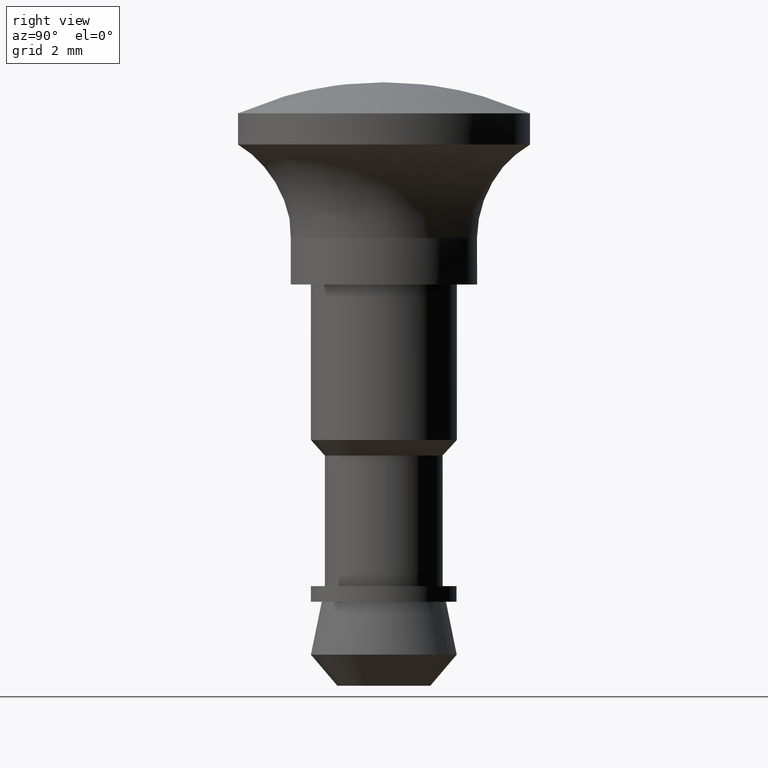
[diagram: clean part render]
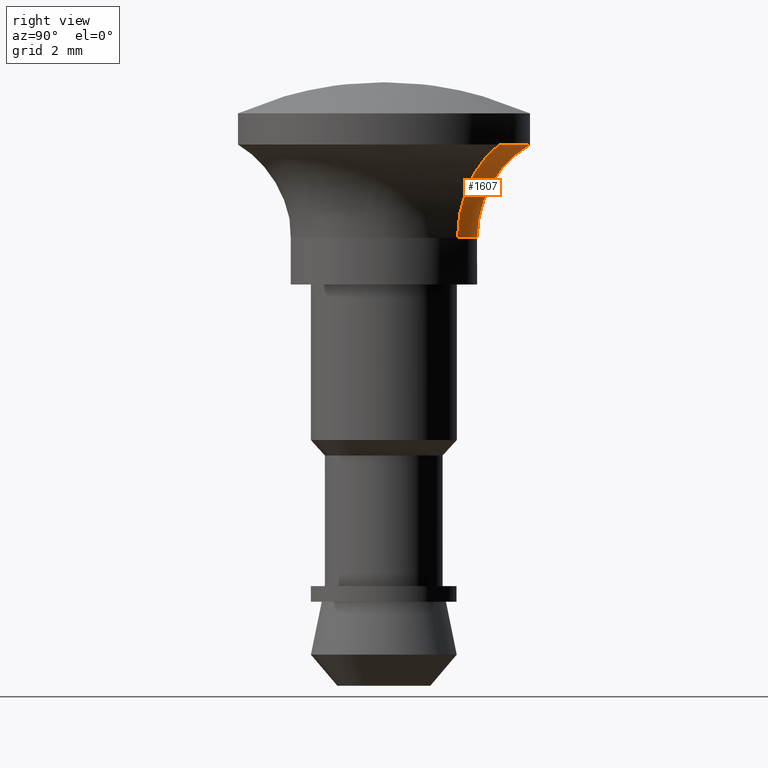
[diagram: same view with one face highlighted and labeled with its STEP entity id]
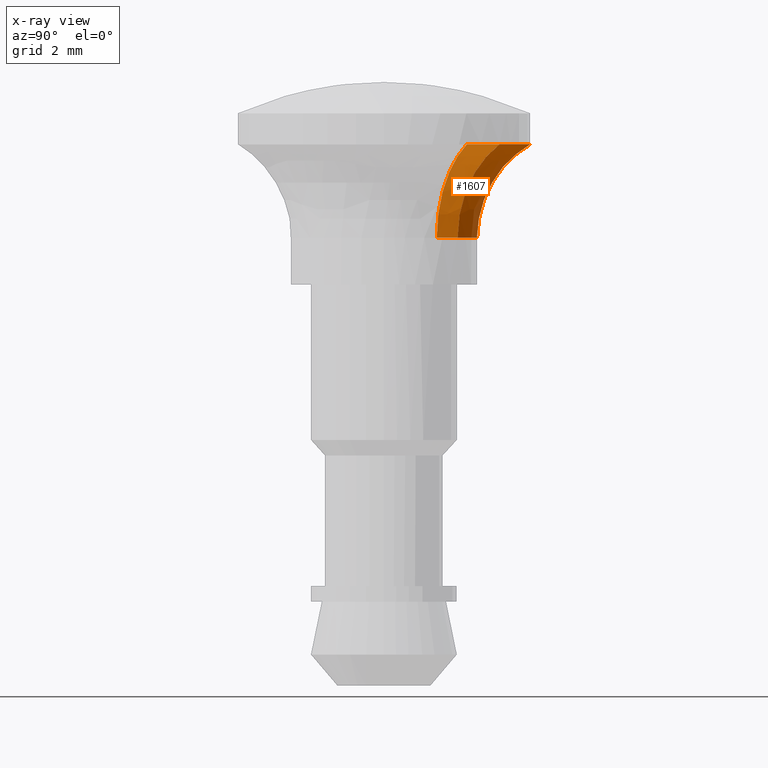
[diagram: x-ray of the same camera — body ghosted, the highlighted face saturated]
A machine part, right view. The second image highlights one B-rep face of the part: STEP entity #1607.
The next image is the same camera in x-ray: the body ghosted, the highlighted face saturated — about 52% of this face is hidden behind the body in this view.
In plain terms, the highlighted face is a freeform B-spline surface patch.
Its self-contained STEP definition (entity closure, byte-faithful):
#87=CARTESIAN_POINT('',(-2.470599186242353,1.701804824575161,1.497997071134931));
#88=VERTEX_POINT('',#87);
#102=CARTESIAN_POINT('',(1.840320043787088,2.369223952363005,1.497997005857969));
#103=VERTEX_POINT('',#102);
#104=CARTESIAN_POINT('',(-2.470599186242354,1.701804824575161,1.497997071134931));
#105=CARTESIAN_POINT('',(-1.576372868560510,3.000000000001109,1.497997054939149));
#106=CARTESIAN_POINT('',(4.636831E-013,3.000000000001525,1.497997031628090));
#107=CARTESIAN_POINT('',(1.028260355751189,3.000000000001798,1.497997016422400));
#108=CARTESIAN_POINT('',(1.840320043787088,2.369223952363005,1.497997005857970));
#116=(BOUNDED_CURVE()B_SPLINE_CURVE(2,(#104,#105,#106,#107,#108),.UNSPECIFIED.,.F.,.U.)B_SPLINE_CURVE_WITH_KNOTS((3,2,3),(0.097429828936804,0.250000000000000,0.356116021520993),.UNSPECIFIED.)CURVE()GEOMETRIC_REPRESENTATION_ITEM()RATIONAL_B_SPLINE_CURVE((0.860677625265231,0.821252926009526,1.0,0.875677347556155,0.856895697210534))REPRESENTATION_ITEM(''));
#117=EDGE_CURVE('',#88,#103,#116,.T.);
#1403=CARTESIAN_POINT('',(2.883163764809257,3.711779003359970,4.499662163489473));
#1404=VERTEX_POINT('',#1403);
#1418=CARTESIAN_POINT('',(-3.870603208739954,2.666164060844125,4.499666203887038));
#1419=VERTEX_POINT('',#1418);
#1420=CARTESIAN_POINT('',(-3.870603208739955,2.666164060844125,4.499666203887037));
#1421=CARTESIAN_POINT('',(-2.469649397500553,4.699998679713358,4.499665201429393));
#1422=CARTESIAN_POINT('',(-0.000002501485097,4.699996779513553,4.499663758563556));
#1423=CARTESIAN_POINT('',(1.610937639043539,4.699995540021322,4.499662817388322));
#1424=CARTESIAN_POINT('',(2.883163764809257,3.711779003359971,4.499662163489474));
#1432=(BOUNDED_CURVE()B_SPLINE_CURVE(2,(#1420,#1421,#1422,#1423,#1424),.UNSPECIFIED.,.F.,.U.)B_SPLINE_CURVE_WITH_KNOTS((3,2,3),(0.097429953509399,0.250000000000000,0.356116014561318),.UNSPECIFIED.)CURVE()GEOMETRIC_REPRESENTATION_ITEM()RATIONAL_B_SPLINE_CURVE((0.860677560885333,0.821253071955399,1.0,0.875677355709921,0.856895699674143))REPRESENTATION_ITEM(''));
#1433=EDGE_CURVE('',#1419,#1404,#1432,.T.);
#1534=CARTESIAN_POINT('',(1.840320043787088,2.369223952363005,1.497997005857969));
#1535=CARTESIAN_POINT('',(1.840318801150608,2.369222770392055,3.480226193743514));
#1536=CARTESIAN_POINT('',(2.883163764809258,3.711779003359970,4.499662163489473));
#1544=(BOUNDED_CURVE()B_SPLINE_CURVE(2,(#1534,#1535,#1536),.UNSPECIFIED.,.F.,.U.)B_SPLINE_CURVE_WITH_KNOTS((3,3),(-1.342773580176713,-0.032801488928201),.UNSPECIFIED.)CURVE()GEOMETRIC_REPRESENTATION_ITEM()RATIONAL_B_SPLINE_CURVE((0.854176149166172,0.791425375087000,0.968488190799603))REPRESENTATION_ITEM(''));
#1545=EDGE_CURVE('',#103,#1404,#1544,.T.);
#1552=CARTESIAN_POINT('',(-2.470599186242354,1.701804824575161,1.497997071134931));
#1553=CARTESIAN_POINT('',(-2.470597123557083,1.701804895052935,3.480231403980461));
#1554=CARTESIAN_POINT('',(-3.870603208739955,2.666164060844125,4.499666203887038));
#1562=(BOUNDED_CURVE()B_SPLINE_CURVE(2,(#1552,#1553,#1554),.UNSPECIFIED.,.F.,.U.)B_SPLINE_CURVE_WITH_KNOTS((3,3),(-1.342773556897110,-0.032798312252830),.UNSPECIFIED.)CURVE()GEOMETRIC_REPRESENTATION_ITEM()RATIONAL_B_SPLINE_CURVE((0.873832304873351,0.809637370355804,0.990775756794485))REPRESENTATION_ITEM(''));
#1563=EDGE_CURVE('',#88,#1419,#1562,.T.);
#1572=CARTESIAN_POINT('',(-2.487024983897876,1.686369047749935,1.315314919886160));
#1573=CARTESIAN_POINT('',(-2.480785406114928,1.695427353704466,1.315314919886160));
#1574=CARTESIAN_POINT('',(-0.770013564742746,4.179040075048725,1.315314919886161));
#1575=CARTESIAN_POINT('',(1.704513255152990,2.474526819895735,1.315314919886160));
#1576=CARTESIAN_POINT('',(1.775333081270016,2.425744429915744,1.315314919886160));
#1577=CARTESIAN_POINT('',(1.852185860137913,2.366048197290110,1.315314919886160));
#1578=CARTESIAN_POINT('',(1.861150406059892,2.359084888654758,1.315314919886161));
#1579=CARTESIAN_POINT('',(-2.393703337953411,1.623090738836780,3.472493875755331));
#1580=CARTESIAN_POINT('',(-2.387697890375216,1.631809146307533,3.472493875755331));
#1581=CARTESIAN_POINT('',(-0.741120033826649,4.022228261417407,3.472493875755331));
#1582=CARTESIAN_POINT('',(1.640554113795379,2.381674147622028,3.472493875755332));
#1583=CARTESIAN_POINT('',(1.708716538888478,2.334722239022608,3.472493875755331));
#1584=CARTESIAN_POINT('',(1.782685539802477,2.277266012316246,3.472493875755332));
#1585=CARTESIAN_POINT('',(1.791313705436361,2.270563990731596,3.472493875755332));
#1586=CARTESIAN_POINT('',(-3.947856342932335,2.676910278259481,4.540387040544688));
#1587=CARTESIAN_POINT('',(-3.937951755368029,2.691289261522754,4.540387040544686));
#1588=CARTESIAN_POINT('',(-1.222304944821742,6.633729043522544,4.540387040544688));
#1589=CARTESIAN_POINT('',(2.705712049350401,3.928016994172144,4.540387040544688));
#1590=CARTESIAN_POINT('',(2.818130099652120,3.850580752496731,4.540387040544688));
#1591=CARTESIAN_POINT('',(2.940124744856723,3.755820083767577,4.540387040544688));
#1592=CARTESIAN_POINT('',(2.954354895220603,3.744766659559192,4.540387040544689));
#1600=(BOUNDED_SURFACE()B_SPLINE_SURFACE(2,2,((#1572,#1579,#1586),(#1573,#1580,#1587),(#1574,#1581,#1588),(#1575,#1582,#1589),(#1576,#1583,#1590),(#1577,#1584,#1591),(#1578,#1585,#1592)),.UNSPECIFIED.,.F.,.F.,.U.)B_SPLINE_SURFACE_WITH_KNOTS((3,1,2,1,3),(3,3),(0.0,0.041098762440287,7.943823763993701,8.259932462590804,8.301025998082542),(0.0,3.968134006938813),.UNSPECIFIED.)GEOMETRIC_REPRESENTATION_ITEM()RATIONAL_B_SPLINE_SURFACE(((0.883540956955001,0.801108527313030,1.003046429887923),(0.882199221668244,0.799891972979972,1.001523214943962),(0.622860301879287,0.564748804492238,0.707106781186548),(0.880857486381488,0.798675418646914,1.0),(0.870537608843211,0.789318363004319,0.988284282420452),(0.859809081145264,0.779590783363914,0.976104641713736),(0.858574841569875,0.778471695628583,0.974703462074043)))REPRESENTATION_ITEM('')SURFACE());
#1601=ORIENTED_EDGE('',*,*,#117,.F.);
#1602=ORIENTED_EDGE('',*,*,#1563,.T.);
#1603=ORIENTED_EDGE('',*,*,#1433,.T.);
#1604=ORIENTED_EDGE('',*,*,#1545,.F.);
#1605=EDGE_LOOP('',(#1601,#1602,#1603,#1604));
#1606=FACE_OUTER_BOUND('',#1605,.T.);
#1607=ADVANCED_FACE('',(#1606),#1600,.F.);